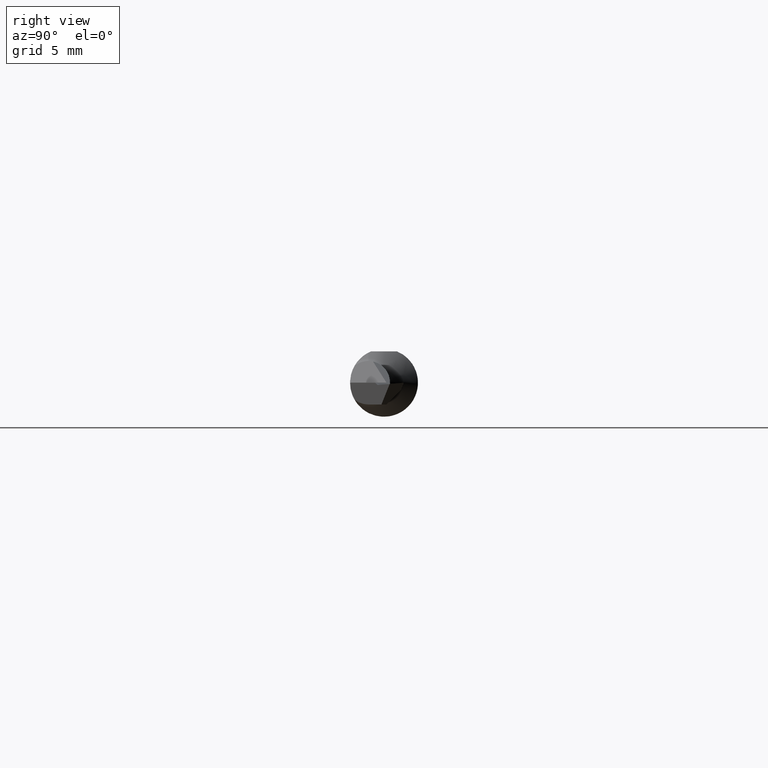
[diagram: clean part render]
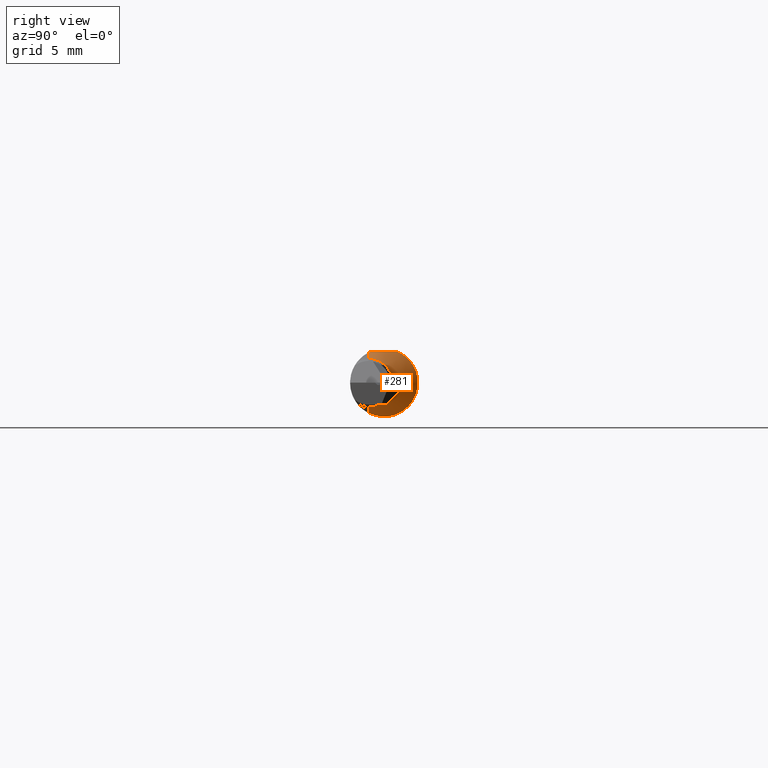
[diagram: same view with one face highlighted and labeled with its STEP entity id]
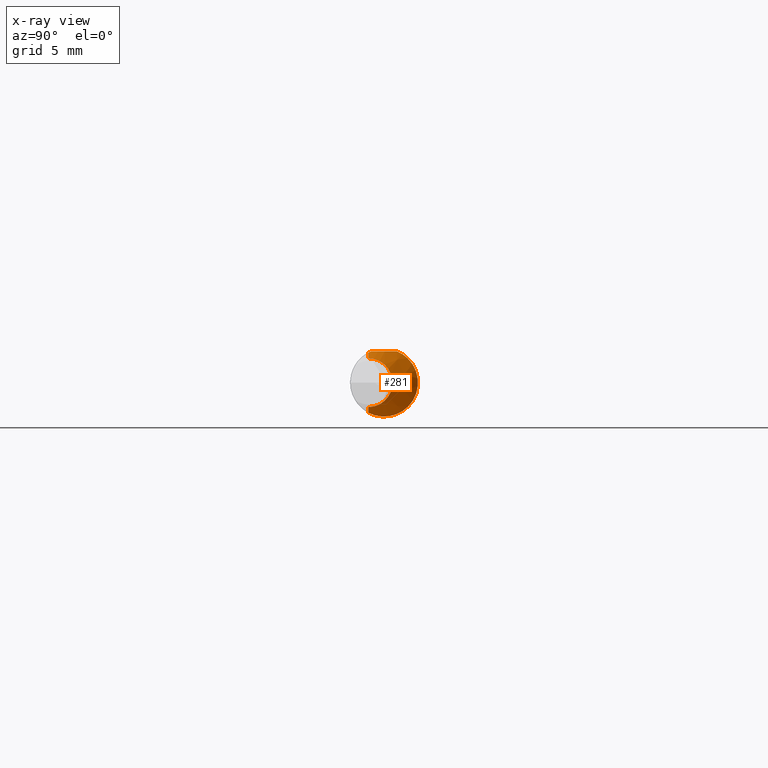
[diagram: x-ray of the same camera — body ghosted, the highlighted face saturated]
A machine part, right view. The second image highlights one B-rep face of the part: STEP entity #281.
The next image is the same camera in x-ray: the body ghosted, the highlighted face saturated — about 9% of this face is hidden behind the body in this view.
In plain terms, the highlighted conical surface has half-angle 45 deg.
Its self-contained STEP definition (entity closure, byte-faithful):
#13 = AXIS2_PLACEMENT_3D ( 'NONE', #301, #530, #958 ) ;
#29 = CARTESIAN_POINT ( 'NONE',  ( 1.507730217382799331, 0.09381949476875167671, 0.001379171797657550687 ) ) ;
#34 = CARTESIAN_POINT ( 'NONE',  ( 1.515120089012976567, 0.07115311157076049942, 0.06114742213607386040 ) ) ;
#46 = CARTESIAN_POINT ( 'NONE',  ( 1.515939244946421072, 0.06872653992798646860, -0.06386219844968345216 ) ) ;
#49 = CARTESIAN_POINT ( 'NONE',  ( 1.577677669529663484, -0.04360000000000000681, 0.06732233047033632511 ) ) ;
#51 = CARTESIAN_POINT ( 'NONE',  ( 1.558023520836405496, -0.03551619348973038964, 0.08659999999999998255 ) ) ;
#53 = ORIENTED_EDGE ( 'NONE', *, *, #606, .F. ) ;
#90 = EDGE_CURVE ( 'NONE', #1059, #261, #758, .T. ) ;
#95 = CARTESIAN_POINT ( 'NONE',  ( 1.558023520836405496, -0.03551619348973038964, 0.08659999999999998255 ) ) ;
#101 = CARTESIAN_POINT ( 'NONE',  ( 1.508476095694653241, 0.09147652334571192145, 0.02088478041190030762 ) ) ;
#104 = VERTEX_POINT ( 'NONE', #774 ) ;
#116 = CARTESIAN_POINT ( 'NONE',  ( 1.543265014012250136, -0.003655424042671508254, -0.09371940383682350606 ) ) ;
#122 = CARTESIAN_POINT ( 'NONE',  ( 1.508300457160753449, 0.09202461176102584572, -0.01829547249540547024 ) ) ;
#132 = EDGE_CURVE ( 'NONE', #420, #1035, #282, .T. ) ;
#136 = CARTESIAN_POINT ( 'NONE',  ( 1.384999999999997566, -0.04359999999999997211, -0.2599999999999999534 ) ) ;
#138 = B_SPLINE_CURVE_WITH_KNOTS ( 'NONE', 3,
 ( #312, #819, #638, #965, #987, #231 ),
 .UNSPECIFIED., .F., .F.,
 ( 4, 2, 4 ),
 ( 0.004221996091487678973, 0.005214190001193096460, 0.006206383910898514815 ),
 .UNSPECIFIED. ) ;
#172 = CARTESIAN_POINT ( 'NONE',  ( 1.517491920919020298, 0.06414576699549907890, -0.06845644935455028057 ) ) ;
#178 = ORIENTED_EDGE ( 'NONE', *, *, #594, .T. ) ;
#190 = CARTESIAN_POINT ( 'NONE',  ( 1.548495826740103221, -0.01554707447101389903, -0.09249312004605583781 ) ) ;
#197 = CARTESIAN_POINT ( 'NONE',  ( 1.520885649790713279, 0.05435289654770205509, -0.07646389683077736699 ) ) ;
#203 = CARTESIAN_POINT ( 'NONE',  ( 1.509393831565363886, 0.08861025287414571461, -0.03084601382962844779 ) ) ;
#231 = CARTESIAN_POINT ( 'NONE',  ( 1.558023520836405496, -0.03551619348973038964, 0.08659999999999998255 ) ) ;
#238 = CARTESIAN_POINT ( 'NONE',  ( 1.527701525703423213, 0.03551619348973086149, 0.08659999999999998255 ) ) ;
#256 = VERTEX_POINT ( 'NONE', #238 ) ;
#261 = VERTEX_POINT ( 'NONE', #805 ) ;
#281 = ADVANCED_FACE ( 'NONE', ( #308 ), #324, .T. ) ;
#282 = CIRCLE ( 'NONE', #13, 0.06732233047033632511 ) ;
#285 = DIRECTION ( 'NONE',  ( -0.7071067811865515695, 0.000000000000000000, 0.7071067811865434649 ) ) ;
#301 = CARTESIAN_POINT ( 'NONE',  ( 1.577677669529663484, -0.04360000000000000681, 0.000000000000000000 ) ) ;
#308 = FACE_OUTER_BOUND ( 'NONE', #499, .T. ) ;
#312 = CARTESIAN_POINT ( 'NONE',  ( 1.527701525703423213, 0.03551619348973086149, 0.08659999999999998255 ) ) ;
#320 = B_SPLINE_CURVE_WITH_KNOTS ( 'NONE', 3,
 ( #557, #475, #1055, #770, #190, #116, #513, #694, #610, #845, #1022, #365, #197, #172, #46, #601, #531, #941, #203, #122, #863, #29, #434, #101, #676, #858, #687, #372, #34, #447, #1029, #851, #519, #781 ),
 .UNSPECIFIED., .F., .F.,
 ( 4, 2, 2, 2, 2, 2, 2, 2, 2, 2, 2, 2, 2, 2, 2, 2, 4 ),
 ( 0.001449473354703524966, 0.001946690950049000243, 0.002443908545394475520, 0.002941126140739950580, 0.003438343736085426074, 0.003935561331430901567, 0.004432778926776377061, 0.004929996522121852555, 0.005427214117467328049, 0.005924431712812804410, 0.006421649308158279904, 0.006918866903503756265, 0.007416084498849231758, 0.007913302094194708119, 0.008410519689540181879, 0.008907737284885657372, 0.009404954880231132866 ),
 .UNSPECIFIED. ) ;
#321 = CARTESIAN_POINT ( 'NONE',  ( 1.384999999999997566, -0.04360000000000000681, 0.000000000000000000 ) ) ;
#324 = CONICAL_SURFACE ( 'NONE', #835, 0.2599999999999999534, 0.7853981633974426169 ) ;
#347 = VECTOR ( 'NONE', #705, 39.37007874015748143 ) ;
#365 = CARTESIAN_POINT ( 'NONE',  ( 1.522725758621181091, 0.04914086561991826141, -0.07990555479593185184 ) ) ;
#372 = CARTESIAN_POINT ( 'NONE',  ( 1.513785744349288587, 0.07515970287789000559, 0.05615941996324871205 ) ) ;
#373 = ORIENTED_EDGE ( 'NONE', *, *, #582, .T. ) ;
#420 = VERTEX_POINT ( 'NONE', #49 ) ;
#434 = CARTESIAN_POINT ( 'NONE',  ( 1.507832322352278265, 0.09349711215871500669, 0.007900531263943145685 ) ) ;
#445 = CARTESIAN_POINT ( 'NONE',  ( 1.560796085082294393, -0.04098075454507676268, 0.08420391491770511105 ) ) ;
#447 = CARTESIAN_POINT ( 'NONE',  ( 1.518166364789388378, 0.06218498935449453396, 0.07024812893643297973 ) ) ;
#475 = CARTESIAN_POINT ( 'NONE',  ( 1.559416727823433657, -0.03836044660242826643, -0.08558327217656612473 ) ) ;
#499 = EDGE_LOOP ( 'NONE', ( #846, #1053, #178, #373, #964, #53 ) ) ;
#506 = VECTOR ( 'NONE', #285, 39.37007874015748143 ) ;
#513 = CARTESIAN_POINT ( 'NONE',  ( 1.540674899065930470, 0.002473900429620058510, -0.09376372094842914950 ) ) ;
#519 = CARTESIAN_POINT ( 'NONE',  ( 1.525549505070181722, 0.04130584341940989751, 0.08422556204225994936 ) ) ;
#530 = DIRECTION ( 'NONE',  ( -1.000000000000000000, -0.000000000000000000, -0.000000000000000000 ) ) ;
#531 = CARTESIAN_POINT ( 'NONE',  ( 1.512096236419457673, 0.08028148374112677177, -0.04856492361454631951 ) ) ;
#557 = CARTESIAN_POINT ( 'NONE',  ( 1.562174883036604900, -0.04359999999999999987, -0.08282511696339463214 ) ) ;
#565 = DIRECTION ( 'NONE',  ( 0.000000000000000000, 0.000000000000000000, 1.000000000000000000 ) ) ;
#582 = EDGE_CURVE ( 'NONE', #256, #1059, #138, .T. ) ;
#594 = EDGE_CURVE ( 'NONE', #104, #256, #320, .T. ) ;
#601 = CARTESIAN_POINT ( 'NONE',  ( 1.513252824815950248, 0.07676139857450867132, -0.05393890405065052823 ) ) ;
#606 = EDGE_CURVE ( 'NONE', #420, #261, #1016, .T. ) ;
#610 = CARTESIAN_POINT ( 'NONE',  ( 1.533392098380112145, 0.02051992070829877432, -0.09152830773666506547 ) ) ;
#638 = CARTESIAN_POINT ( 'NONE',  ( 1.541750224432351546, 0.01358083083026439229, 0.08660000000000001030 ) ) ;
#654 = DIRECTION ( 'NONE',  ( -1.000000000000000000, -0.000000000000000000, -0.000000000000000000 ) ) ;
#676 = CARTESIAN_POINT ( 'NONE',  ( 1.509020195642277518, 0.08977100142499537527, 0.02728114714779978148 ) ) ;
#687 = CARTESIAN_POINT ( 'NONE',  ( 1.511475077763426933, 0.08217488604661300766, 0.04527857650729996686 ) ) ;
#694 = CARTESIAN_POINT ( 'NONE',  ( 1.535742326738734675, 0.01455546558514136599, -0.09266009913134309883 ) ) ;
#705 = DIRECTION ( 'NONE',  ( -0.7071067811865515695, 8.659560562354883554E-17, -0.7071067811865434649 ) ) ;
#758 = B_SPLINE_CURVE_WITH_KNOTS ( 'NONE', 3,
 ( #51, #1015, #445, #786 ),
 .UNSPECIFIED., .F., .F.,
 ( 4, 4 ),
 ( 5.729164479850955060E-07, 0.0002485545944389310272 ),
 .UNSPECIFIED. ) ;
#760 = CARTESIAN_POINT ( 'NONE',  ( 1.384999999999997566, -0.04360000000000000681, 0.2599999999999999534 ) ) ;
#770 = CARTESIAN_POINT ( 'NONE',  ( 1.551162578112211810, -0.02137516006684748310, -0.09132136495557871547 ) ) ;
#774 = CARTESIAN_POINT ( 'NONE',  ( 1.562174883036604900, -0.04359999999999999987, -0.08282511696339463214 ) ) ;
#781 = CARTESIAN_POINT ( 'NONE',  ( 1.527701525703423213, 0.03551619348973086149, 0.08659999999999998255 ) ) ;
#786 = CARTESIAN_POINT ( 'NONE',  ( 1.562174883036604900, -0.04360000000000001374, 0.08282511696339463214 ) ) ;
#801 = EDGE_CURVE ( 'NONE', #1035, #104, #875, .T. ) ;
#805 = CARTESIAN_POINT ( 'NONE',  ( 1.562174883036604900, -0.04360000000000001374, 0.08282511696339463214 ) ) ;
#819 = CARTESIAN_POINT ( 'NONE',  ( 1.534990260883382085, 0.02470984047336723805, 0.08659999999999998255 ) ) ;
#835 = AXIS2_PLACEMENT_3D ( 'NONE', #321, #654, #565 ) ;
#845 = CARTESIAN_POINT ( 'NONE',  ( 1.528890268427389065, 0.03227618288569650273, -0.08807239227670383974 ) ) ;
#846 = ORIENTED_EDGE ( 'NONE', *, *, #132, .T. ) ;
#851 = CARTESIAN_POINT ( 'NONE',  ( 1.523563078640440382, 0.04680750307691880496, 0.08129727678532774893 ) ) ;
#858 = CARTESIAN_POINT ( 'NONE',  ( 1.510511327969831008, 0.08514595224235760318, 0.03941142604992352999 ) ) ;
#861 = CARTESIAN_POINT ( 'NONE',  ( 1.577677669529663484, -0.04359999999999999987, -0.06732233047033632511 ) ) ;
#863 = CARTESIAN_POINT ( 'NONE',  ( 1.507960659897338740, 0.09309458096140459105, -0.01172171954671188086 ) ) ;
#875 = LINE ( 'NONE', #136, #347 ) ;
#941 = CARTESIAN_POINT ( 'NONE',  ( 1.510152022803403549, 0.08625128397210297948, -0.03693757504936096697 ) ) ;
#958 = DIRECTION ( 'NONE',  ( 0.000000000000000000, 0.000000000000000000, 1.000000000000000000 ) ) ;
#964 = ORIENTED_EDGE ( 'NONE', *, *, #90, .T. ) ;
#965 = CARTESIAN_POINT ( 'NONE',  ( 1.552683531163871811, -0.009962793248527845175, 0.08659999999999998255 ) ) ;
#987 = CARTESIAN_POINT ( 'NONE',  ( 1.556820612909630919, -0.02257368972052711462, 0.08660000000000001030 ) ) ;
#1015 = CARTESIAN_POINT ( 'NONE',  ( 1.559412477529317886, -0.03828698621588679657, 0.08546364883854394578 ) ) ;
#1016 = LINE ( 'NONE', #760, #506 ) ;
#1022 = CARTESIAN_POINT ( 'NONE',  ( 1.526719064373899926, 0.03812469162702816078, -0.08571015254603474298 ) ) ;
#1029 = CARTESIAN_POINT ( 'NONE',  ( 1.519879818681997952, 0.05722188270721495496, 0.07433603228884151648 ) ) ;
#1035 = VERTEX_POINT ( 'NONE', #861 ) ;
#1053 = ORIENTED_EDGE ( 'NONE', *, *, #801, .T. ) ;
#1055 = CARTESIAN_POINT ( 'NONE',  ( 1.556623605259439991, -0.03278656602106054530, -0.08787223824268955430 ) ) ;
#1059 = VERTEX_POINT ( 'NONE', #95 ) ;